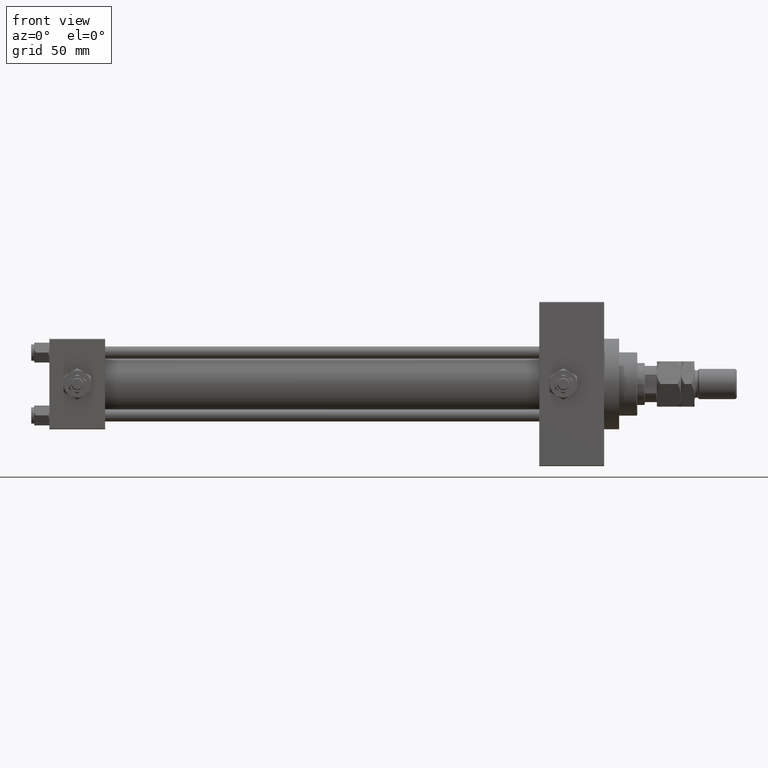
[diagram: clean part render]
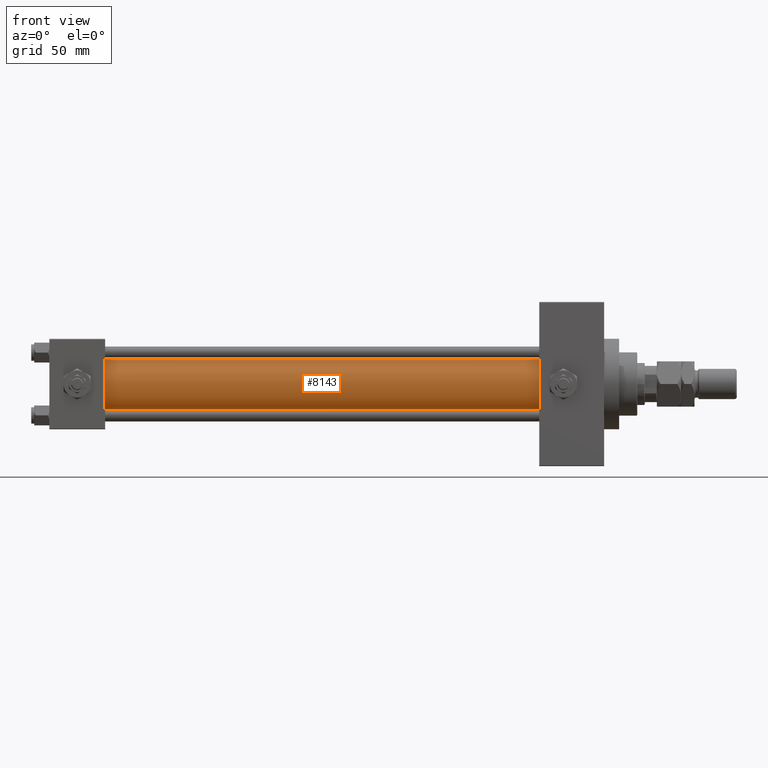
[diagram: same view with one face highlighted and labeled with its STEP entity id]
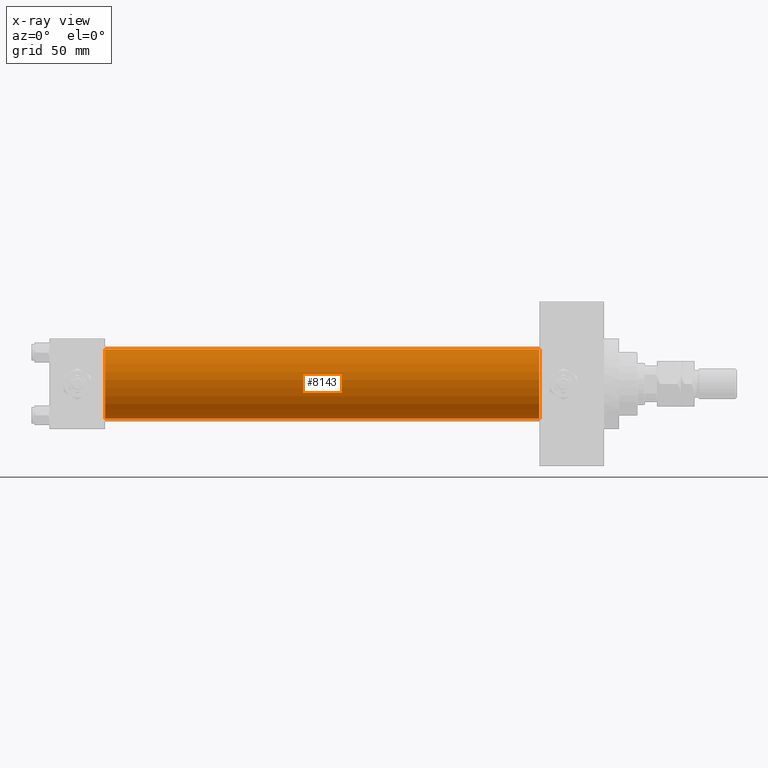
[diagram: x-ray of the same camera — body ghosted, the highlighted face saturated]
A machine part, front view. The second image highlights one B-rep face of the part: STEP entity #8143.
The next image is the same camera in x-ray: the body ghosted, the highlighted face saturated — about 0% of this face is hidden behind the body in this view.
In plain terms, the highlighted cylindrical surface (edge-blend (fillet) strip) has radius 23 mm, axis along (-1, -0, -0).
Its self-contained STEP definition (entity closure, byte-faithful):
#537 = DIRECTION ( 'NONE',  ( -1.000000000000000000, -0.000000000000000000, -0.000000000000000000 ) ) ;
#2370 = CARTESIAN_POINT ( 'NONE',  ( 324.9999999999999432, -2.602085213965210642E-15, 0.000000000000000000 ) ) ;
#2478 = CARTESIAN_POINT ( 'NONE',  ( 324.9999999999999432, 2.146024240737016609E-16, -23.00000000000000000 ) ) ;
#5678 = CARTESIAN_POINT ( 'NONE',  ( 324.9999999999999432, -2.602085213965210642E-15, 23.00000000000000000 ) ) ;
#5731 = DIRECTION ( 'NONE',  ( -1.000000000000000000, -0.000000000000000000, -0.000000000000000000 ) ) ;
#5847 = EDGE_CURVE ( 'NONE', #21149, #33647, #33666, .T. ) ;
#6587 = AXIS2_PLACEMENT_3D ( 'NONE', #15899, #13051, #24874 ) ;
#7377 = LINE ( 'NONE', #2478, #39132 ) ;
#8143 = ADVANCED_FACE ( 'NONE', ( #25533 ), #49211, .T. ) ;
#8523 = ORIENTED_EDGE ( 'NONE', *, *, #27185, .F. ) ;
#9428 = CIRCLE ( 'NONE', #9460, 23.00000000000000000 ) ;
#9460 = AXIS2_PLACEMENT_3D ( 'NONE', #38168, #37172, #45148 ) ;
#13051 = DIRECTION ( 'NONE',  ( 1.000000000000000000, -0.000000000000000000, 0.000000000000000000 ) ) ;
#13272 = AXIS2_PLACEMENT_3D ( 'NONE', #2370, #5731, #29374 ) ;
#15582 = CARTESIAN_POINT ( 'NONE',  ( 36.99999999999997868, 2.146024240737016609E-16, -23.00000000000000000 ) ) ;
#15899 = CARTESIAN_POINT ( 'NONE',  ( 36.99999999999997868, -2.602085213965210642E-15, 0.000000000000000000 ) ) ;
#16286 = ORIENTED_EDGE ( 'NONE', *, *, #47869, .T. ) ;
#21149 = VERTEX_POINT ( 'NONE', #40405 ) ;
#23122 = ORIENTED_EDGE ( 'NONE', *, *, #49648, .F. ) ;
#23186 = LINE ( 'NONE', #32143, #28165 ) ;
#24220 = VERTEX_POINT ( 'NONE', #24294 ) ;
#24294 = CARTESIAN_POINT ( 'NONE',  ( 324.9999999999999432, 2.146024240737016609E-16, -23.00000000000000000 ) ) ;
#24874 = DIRECTION ( 'NONE',  ( 0.000000000000000000, 0.000000000000000000, 1.000000000000000000 ) ) ;
#25533 = FACE_OUTER_BOUND ( 'NONE', #32347, .T. ) ;
#27185 = EDGE_CURVE ( 'NONE', #24220, #33647, #7377, .T. ) ;
#28165 = VECTOR ( 'NONE', #537, 1000.000000000000000 ) ;
#29374 = DIRECTION ( 'NONE',  ( 0.000000000000000000, 0.000000000000000000, 1.000000000000000000 ) ) ;
#29982 = DIRECTION ( 'NONE',  ( -1.000000000000000000, -0.000000000000000000, -0.000000000000000000 ) ) ;
#32143 = CARTESIAN_POINT ( 'NONE',  ( 324.9999999999999432, -2.602085213965210642E-15, 23.00000000000000000 ) ) ;
#32347 = EDGE_LOOP ( 'NONE', ( #8523, #23122, #16286, #46779 ) ) ;
#33647 = VERTEX_POINT ( 'NONE', #15582 ) ;
#33666 = CIRCLE ( 'NONE', #6587, 23.00000000000000000 ) ;
#37172 = DIRECTION ( 'NONE',  ( 1.000000000000000000, 0.000000000000000000, 0.000000000000000000 ) ) ;
#38168 = CARTESIAN_POINT ( 'NONE',  ( 324.9999999999999432, -2.602085213965210642E-15, 0.000000000000000000 ) ) ;
#39132 = VECTOR ( 'NONE', #29982, 1000.000000000000000 ) ;
#40405 = CARTESIAN_POINT ( 'NONE',  ( 36.99999999999997868, -2.602085213965210642E-15, 23.00000000000000000 ) ) ;
#40890 = VERTEX_POINT ( 'NONE', #5678 ) ;
#45148 = DIRECTION ( 'NONE',  ( 0.000000000000000000, 0.000000000000000000, -1.000000000000000000 ) ) ;
#46779 = ORIENTED_EDGE ( 'NONE', *, *, #5847, .T. ) ;
#47869 = EDGE_CURVE ( 'NONE', #40890, #21149, #23186, .T. ) ;
#49211 = CYLINDRICAL_SURFACE ( 'NONE', #13272, 23.00000000000000000 ) ;
#49648 = EDGE_CURVE ( 'NONE', #40890, #24220, #9428, .T. ) ;